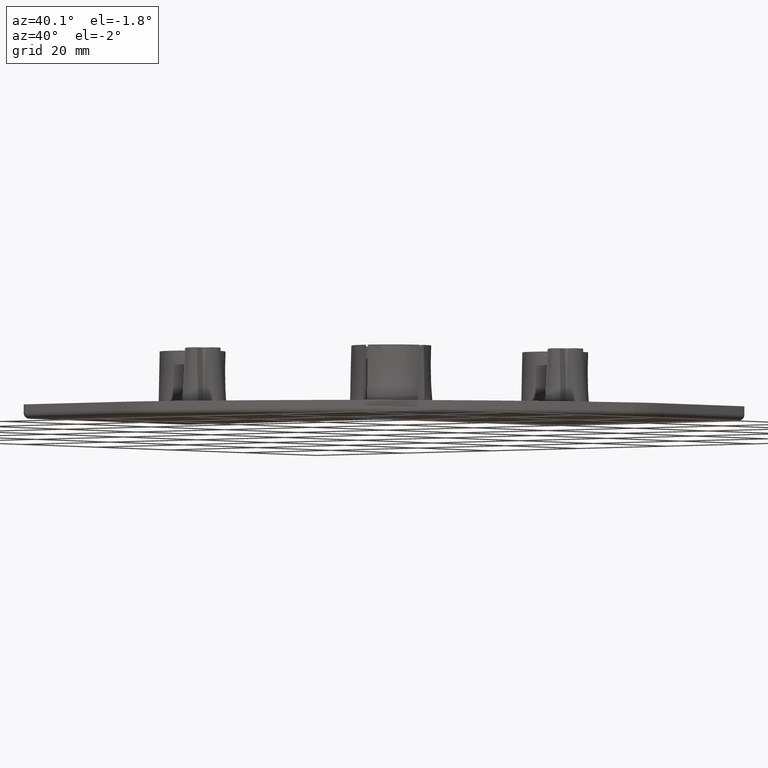
[diagram: clean part render]
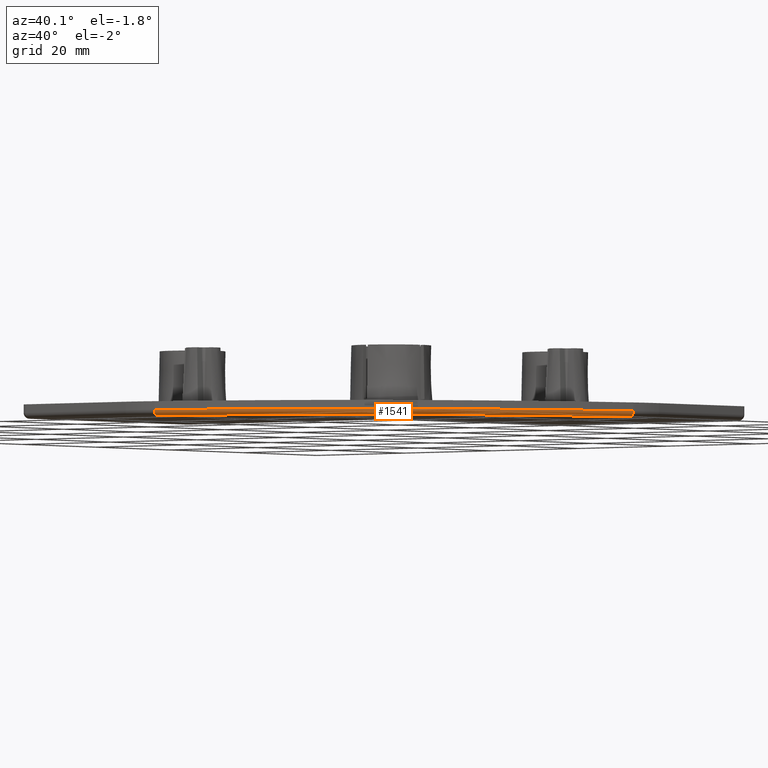
[diagram: same view with one face highlighted and labeled with its STEP entity id]
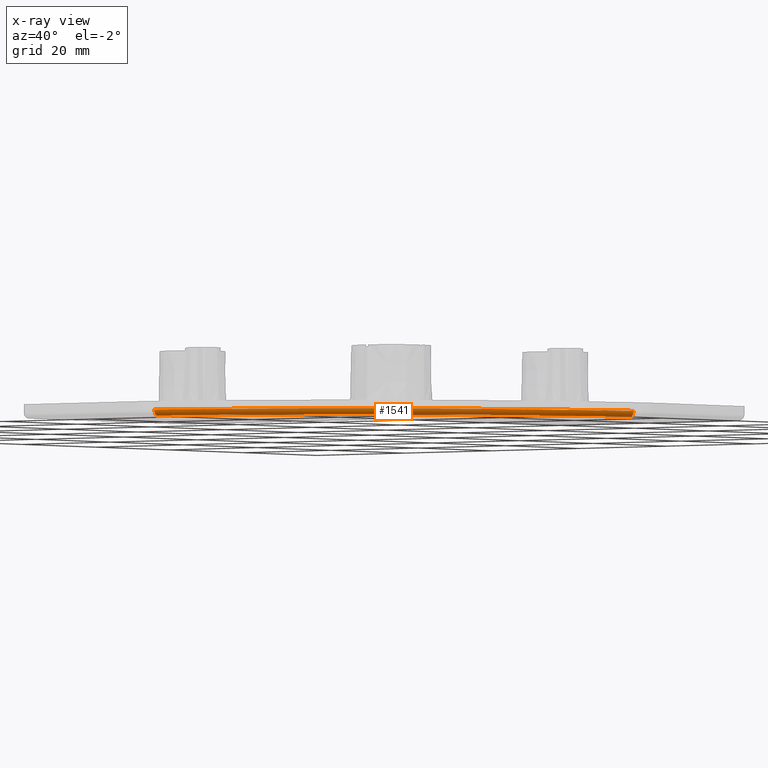
[diagram: x-ray of the same camera — body ghosted, the highlighted face saturated]
A machine part, auxiliary view. The second image highlights one B-rep face of the part: STEP entity #1541.
The next image is the same camera in x-ray: the body ghosted, the highlighted face saturated — about 0% of this face is hidden behind the body in this view.
In plain terms, the highlighted toroidal blend (fillet) surface has major radius 89 mm and minor (blend) radius 1 mm.
Its self-contained STEP definition (entity closure, byte-faithful):
#20=TOROIDAL_SURFACE('',#1728,89.,1.);
#152=CIRCLE('',#1725,0.999999999999994);
#155=CIRCLE('',#1729,0.999999999999986);
#156=CIRCLE('',#1730,89.);
#157=CIRCLE('',#1731,90.);
#239=FACE_OUTER_BOUND('',#337,.T.);
#337=EDGE_LOOP('',(#1320,#1321,#1322,#1323));
#727=VERTEX_POINT('',#2669);
#728=VERTEX_POINT('',#2670);
#729=VERTEX_POINT('',#2675);
#730=VERTEX_POINT('',#2676);
#927=EDGE_CURVE('',#727,#728,#152,.T.);
#930=EDGE_CURVE('',#729,#730,#155,.T.);
#931=EDGE_CURVE('',#730,#728,#156,.T.);
#932=EDGE_CURVE('',#727,#729,#157,.T.);
#1320=ORIENTED_EDGE('',*,*,#930,.T.);
#1321=ORIENTED_EDGE('',*,*,#931,.T.);
#1322=ORIENTED_EDGE('',*,*,#927,.F.);
#1323=ORIENTED_EDGE('',*,*,#932,.T.);
#1541=ADVANCED_FACE('',(#239),#20,.T.);
#1725=AXIS2_PLACEMENT_3D('',#2671,#2139,#2140);
#1728=AXIS2_PLACEMENT_3D('',#2674,#2145,#2146);
#1729=AXIS2_PLACEMENT_3D('',#2677,#2147,#2148);
#1730=AXIS2_PLACEMENT_3D('',#2678,#2149,#2150);
#1731=AXIS2_PLACEMENT_3D('',#2679,#2151,#2152);
#2139=DIRECTION('center_axis',(0.295083630829757,0.955471428571429,0.));
#2140=DIRECTION('ref_axis',(0.955471428571429,-0.295083630829757,0.));
#2145=DIRECTION('center_axis',(0.,0.,-1.));
#2146=DIRECTION('ref_axis',(-1.,0.,0.));
#2147=DIRECTION('center_axis',(0.955471428571433,0.295083630829746,0.));
#2148=DIRECTION('ref_axis',(0.295083630829746,-0.955471428571433,0.));
#2149=DIRECTION('center_axis',(0.,0.,1.));
#2150=DIRECTION('ref_axis',(0.707106781186547,-0.707106781186548,0.));
#2151=DIRECTION('center_axis',(0.,0.,-1.));
#2152=DIRECTION('ref_axis',(0.707106781186547,-0.707106781186548,0.));
#2669=CARTESIAN_POINT('',(21.6094285714286,37.8254732253217,-1.5));
#2670=CARTESIAN_POINT('',(20.6539571428571,38.1205568561514,-2.5));
#2671=CARTESIAN_POINT('Origin',(20.6539571428571,38.1205568561514,-1.5));
#2674=CARTESIAN_POINT('Origin',(-64.383,64.383,-1.5));
#2675=CARTESIAN_POINT('',(-37.8254732253217,-21.6094285714286,-1.5));
#2676=CARTESIAN_POINT('',(-38.1205568561515,-20.6539571428572,-2.5));
#2677=CARTESIAN_POINT('Origin',(-38.1205568561515,-20.6539571428572,-1.5));
#2678=CARTESIAN_POINT('Origin',(-64.383,64.383,-2.5));
#2679=CARTESIAN_POINT('Origin',(-64.383,64.383,-1.5));